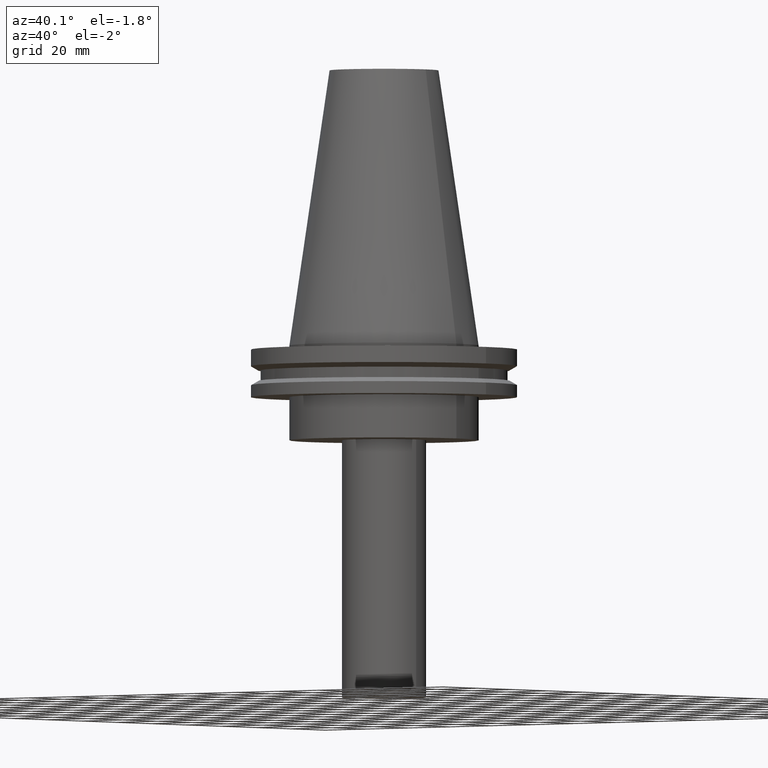
[diagram: clean part render]
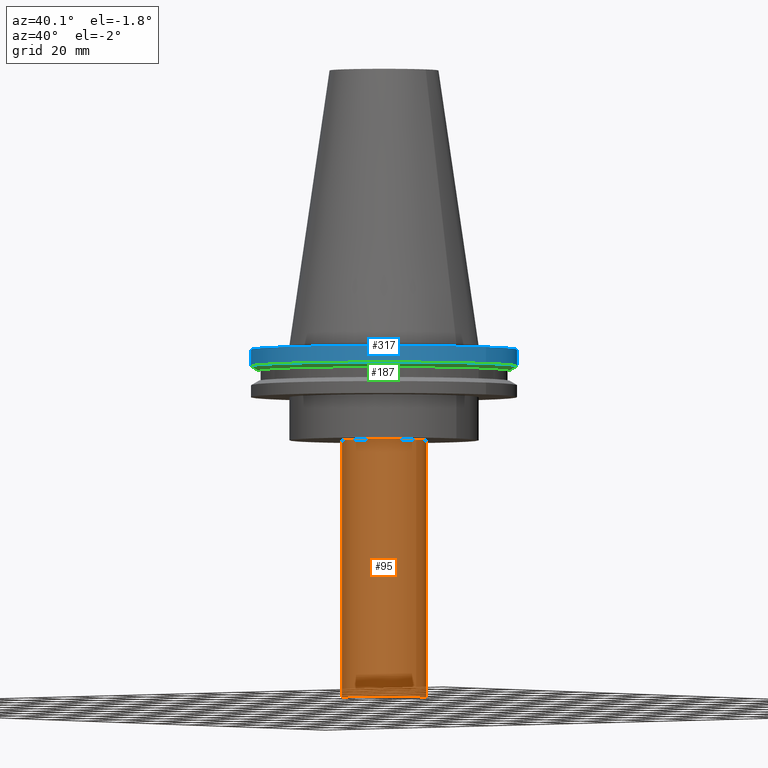
[diagram: same view with three faces highlighted in distinct colors, each labeled with its STEP entity id]
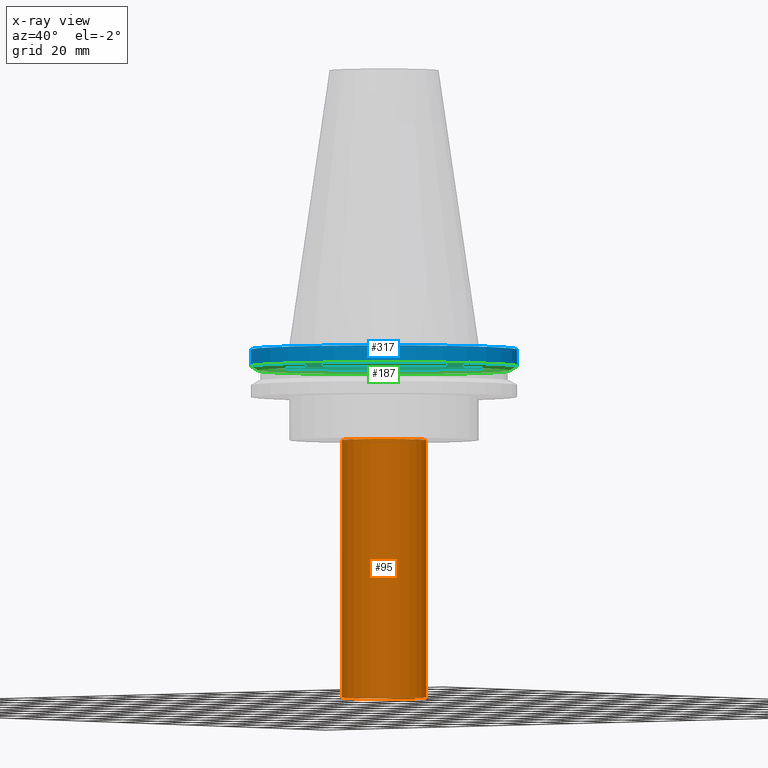
[diagram: x-ray of the same camera — body ghosted, the three highlighted faces saturated]
A machine part, auxiliary view with three faces highlighted in distinct colors.
The next image is the same camera in x-ray (body ghosted, the three faces saturated) — at least one of them is partly hidden behind the body in this view.
Their STEP definitions:

[orange] entity #95 — the highlighted cylindrical surface (bore or boss wall) has radius 15.5 mm, axis along (-0, -0, 1).
#7 = DIRECTION ( 'NONE',  ( -0.000000000000000000, -0.000000000000000000, 1.000000000000000000 ) ) ;
#18 = DIRECTION ( 'NONE',  ( 1.000000000000000000, 0.000000000000000000, 0.000000000000000000 ) ) ;
#20 = VERTEX_POINT ( 'NONE', #142 ) ;
#25 = EDGE_CURVE ( 'NONE', #20, #20, #149, .T. ) ;
#29 = CARTESIAN_POINT ( 'NONE',  ( 0.000000000000000000, 0.000000000000000000, 0.000000000000000000 ) ) ;
#34 = DIRECTION ( 'NONE',  ( -0.000000000000000000, -0.000000000000000000, 1.000000000000000000 ) ) ;
#36 = DIRECTION ( 'NONE',  ( 1.000000000000000000, 0.000000000000000000, 0.000000000000000000 ) ) ;
#39 = CARTESIAN_POINT ( 'NONE',  ( 15.50000000000000000, 0.000000000000000000, -130.0000000000000000 ) ) ;
#60 = CARTESIAN_POINT ( 'NONE',  ( 0.000000000000000000, 0.000000000000000000, -130.0000000000000000 ) ) ;
#76 = AXIS2_PLACEMENT_3D ( 'NONE', #29, #34, #88 ) ;
#83 = AXIS2_PLACEMENT_3D ( 'NONE', #60, #7, #36 ) ;
#88 = DIRECTION ( 'NONE',  ( 1.000000000000000000, 0.000000000000000000, 0.000000000000000000 ) ) ;
#95 = ADVANCED_FACE ( 'NONE', ( #394, #395 ), #306, .T. ) ;
#99 = AXIS2_PLACEMENT_3D ( 'NONE', #195, #389, #18 ) ;
#112 = EDGE_LOOP ( 'NONE', ( #299 ) ) ;
#142 = CARTESIAN_POINT ( 'NONE',  ( 15.50000000000000000, 0.000000000000000000, -35.00000000000000000 ) ) ;
#149 = CIRCLE ( 'NONE', #99, 15.50000000000000000 ) ;
#195 = CARTESIAN_POINT ( 'NONE',  ( 0.000000000000000000, 0.000000000000000000, -35.00000000000000000 ) ) ;
#217 = EDGE_LOOP ( 'NONE', ( #326 ) ) ;
#246 = EDGE_CURVE ( 'NONE', #313, #313, #366, .T. ) ;
#299 = ORIENTED_EDGE ( 'NONE', *, *, #25, .F. ) ;
#306 = CYLINDRICAL_SURFACE ( 'NONE', #76, 15.50000000000000000 ) ;
#313 = VERTEX_POINT ( 'NONE', #39 ) ;
#326 = ORIENTED_EDGE ( 'NONE', *, *, #246, .T. ) ;
#366 = CIRCLE ( 'NONE', #83, 15.50000000000000000 ) ;
#389 = DIRECTION ( 'NONE',  ( -0.000000000000000000, -0.000000000000000000, 1.000000000000000000 ) ) ;
#394 = FACE_OUTER_BOUND ( 'NONE', #112, .T. ) ;
#395 = FACE_OUTER_BOUND ( 'NONE', #217, .T. ) ;

[blue] entity #317 — the highlighted cylindrical surface (bore or boss wall) has radius 49.215 mm, axis along (-0, -0, 1).
#3 = DIRECTION ( 'NONE',  ( -0.000000000000000000, -0.000000000000000000, 1.000000000000000000 ) ) ;
#4 = CARTESIAN_POINT ( 'NONE',  ( 0.000000000000000000, 0.000000000000000000, -1.499999999999987566 ) ) ;
#17 = CYLINDRICAL_SURFACE ( 'NONE', #176, 49.21499999999999631 ) ;
#23 = EDGE_LOOP ( 'NONE', ( #211 ) ) ;
#92 = DIRECTION ( 'NONE',  ( -0.000000000000000000, -0.000000000000000000, 1.000000000000000000 ) ) ;
#94 = VERTEX_POINT ( 'NONE', #213 ) ;
#103 = CIRCLE ( 'NONE', #226, 49.21500000000000341 ) ;
#123 = EDGE_CURVE ( 'NONE', #230, #230, #248, .T. ) ;
#124 = DIRECTION ( 'NONE',  ( 1.000000000000000000, 0.000000000000000000, 0.000000000000000000 ) ) ;
#127 = AXIS2_PLACEMENT_3D ( 'NONE', #4, #3, #124 ) ;
#129 = DIRECTION ( 'NONE',  ( 1.000000000000000000, 0.000000000000000000, 0.000000000000000000 ) ) ;
#165 = CARTESIAN_POINT ( 'NONE',  ( 0.000000000000000000, 0.000000000000000000, 101.5999999999999943 ) ) ;
#176 = AXIS2_PLACEMENT_3D ( 'NONE', #165, #194, #258 ) ;
#183 = CARTESIAN_POINT ( 'NONE',  ( 0.000000000000000000, 0.000000000000000000, -7.602389855251287187 ) ) ;
#194 = DIRECTION ( 'NONE',  ( -0.000000000000000000, -0.000000000000000000, 1.000000000000000000 ) ) ;
#211 = ORIENTED_EDGE ( 'NONE', *, *, #123, .F. ) ;
#213 = CARTESIAN_POINT ( 'NONE',  ( 49.21500000000000341, 0.000000000000000000, -7.602389855251287187 ) ) ;
#215 = ORIENTED_EDGE ( 'NONE', *, *, #263, .T. ) ;
#223 = FACE_OUTER_BOUND ( 'NONE', #357, .T. ) ;
#226 = AXIS2_PLACEMENT_3D ( 'NONE', #183, #92, #129 ) ;
#230 = VERTEX_POINT ( 'NONE', #318 ) ;
#248 = CIRCLE ( 'NONE', #127, 49.21499999999999631 ) ;
#258 = DIRECTION ( 'NONE',  ( 1.000000000000000000, 0.000000000000000000, 0.000000000000000000 ) ) ;
#261 = FACE_OUTER_BOUND ( 'NONE', #23, .T. ) ;
#263 = EDGE_CURVE ( 'NONE', #94, #94, #103, .T. ) ;
#317 = ADVANCED_FACE ( 'NONE', ( #261, #223 ), #17, .T. ) ;
#318 = CARTESIAN_POINT ( 'NONE',  ( 49.21499999999999631, 0.000000000000000000, -1.499999999999987566 ) ) ;
#357 = EDGE_LOOP ( 'NONE', ( #215 ) ) ;

[green] entity #187 — the highlighted conical surface has half-angle 60 deg.
#15 = ORIENTED_EDGE ( 'NONE', *, *, #263, .F. ) ;
#78 = EDGE_LOOP ( 'NONE', ( #15 ) ) ;
#85 = CARTESIAN_POINT ( 'NONE',  ( 0.000000000000000000, 0.000000000000000000, -9.204999999999991189 ) ) ;
#87 = DIRECTION ( 'NONE',  ( 1.000000000000000000, 0.000000000000000000, 0.000000000000000000 ) ) ;
#92 = DIRECTION ( 'NONE',  ( -0.000000000000000000, -0.000000000000000000, 1.000000000000000000 ) ) ;
#94 = VERTEX_POINT ( 'NONE', #213 ) ;
#103 = CIRCLE ( 'NONE', #226, 49.21500000000000341 ) ;
#121 = DIRECTION ( 'NONE',  ( -0.000000000000000000, -0.000000000000000000, 1.000000000000000000 ) ) ;
#129 = DIRECTION ( 'NONE',  ( 1.000000000000000000, 0.000000000000000000, 0.000000000000000000 ) ) ;
#134 = EDGE_LOOP ( 'NONE', ( #232 ) ) ;
#153 = AXIS2_PLACEMENT_3D ( 'NONE', #175, #121, #87 ) ;
#156 = EDGE_CURVE ( 'NONE', #265, #265, #351, .T. ) ;
#162 = CARTESIAN_POINT ( 'NONE',  ( 46.43919780457007818, 0.000000000000000000, -9.204999999999991189 ) ) ;
#175 = CARTESIAN_POINT ( 'NONE',  ( 0.000000000000000000, 0.000000000000000000, -9.204999999999991189 ) ) ;
#183 = CARTESIAN_POINT ( 'NONE',  ( 0.000000000000000000, 0.000000000000000000, -7.602389855251287187 ) ) ;
#187 = ADVANCED_FACE ( 'NONE', ( #303, #393 ), #220, .T. ) ;
#208 = DIRECTION ( 'NONE',  ( 1.000000000000000000, 0.000000000000000000, 0.000000000000000000 ) ) ;
#213 = CARTESIAN_POINT ( 'NONE',  ( 49.21500000000000341, 0.000000000000000000, -7.602389855251287187 ) ) ;
#220 = CONICAL_SURFACE ( 'NONE', #238, 46.43919780457007818, 1.047197551196575205 ) ;
#226 = AXIS2_PLACEMENT_3D ( 'NONE', #183, #92, #129 ) ;
#232 = ORIENTED_EDGE ( 'NONE', *, *, #156, .T. ) ;
#238 = AXIS2_PLACEMENT_3D ( 'NONE', #85, #330, #208 ) ;
#263 = EDGE_CURVE ( 'NONE', #94, #94, #103, .T. ) ;
#265 = VERTEX_POINT ( 'NONE', #162 ) ;
#303 = FACE_OUTER_BOUND ( 'NONE', #78, .T. ) ;
#330 = DIRECTION ( 'NONE',  ( -0.000000000000000000, -0.000000000000000000, 1.000000000000000000 ) ) ;
#351 = CIRCLE ( 'NONE', #153, 46.43919780457007818 ) ;
#393 = FACE_BOUND ( 'NONE', #134, .T. ) ;